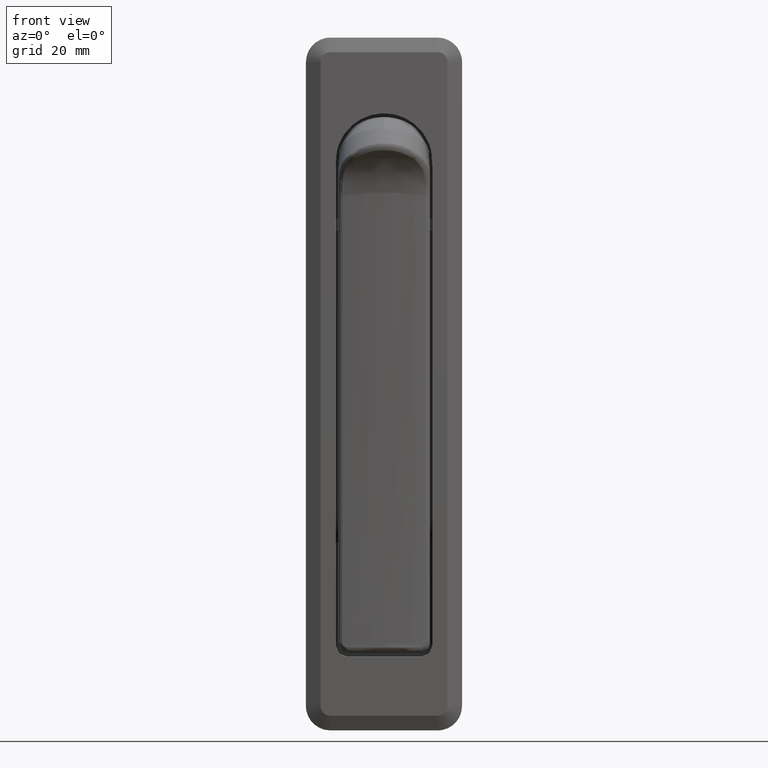
[diagram: clean part render]
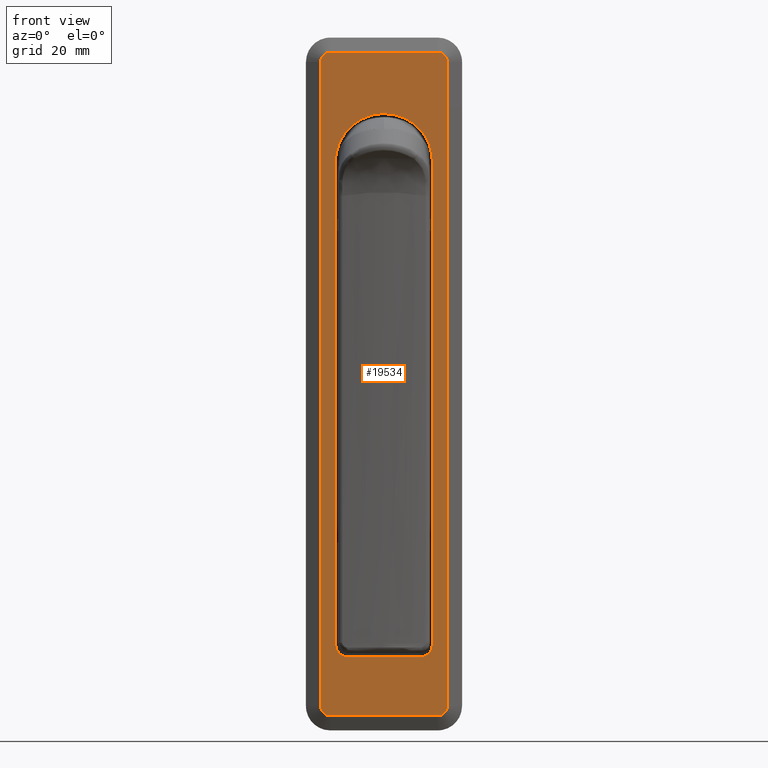
[diagram: same view with one face highlighted and labeled with its STEP entity id]
A machine part, front view. The second image highlights one B-rep face of the part: STEP entity #19534.
In plain terms, the highlighted face is a freeform B-spline surface patch.
Its self-contained STEP definition (entity closure, byte-faithful):
#11787=CARTESIAN_POINT('',(-2.999999999999955,6.532009098619094,7.505688318558847));
#11788=VERTEX_POINT('',#11787);
#11789=CARTESIAN_POINT('',(-2.999999999999915,9.900000000000000,-0.996242942257537));
#11790=VERTEX_POINT('',#11789);
#11791=CARTESIAN_POINT('',(-2.999999999999955,6.532009098619095,7.505688318558848));
#11792=CARTESIAN_POINT('',(-2.999999999999915,10.415456689642689,4.126022933873126));
#11793=CARTESIAN_POINT('',(-2.999999999999915,9.900000000000000,-0.996242942257537));
#11801=(BOUNDED_CURVE()B_SPLINE_CURVE(2,(#11791,#11792,#11793),.UNSPECIFIED.,.F.,.U.)B_SPLINE_CURVE_WITH_KNOTS((3,3),(0.715815399067005,1.0),.UNSPECIFIED.)CURVE()GEOMETRIC_REPRESENTATION_ITEM()RATIONAL_B_SPLINE_CURVE((0.961993882014952,0.871118690388353,1.0))REPRESENTATION_ITEM(''));
#11802=EDGE_CURVE('',#11788,#11790,#11801,.T.);
#11828=CARTESIAN_POINT('',(-2.999999999999915,-9.900000000000000,-0.996242942257537));
#11829=VERTEX_POINT('',#11828);
#11835=CARTESIAN_POINT('',(-2.999999999999914,-7.866966903158665,6.092071219580865));
#11836=VERTEX_POINT('',#11835);
#11837=CARTESIAN_POINT('',(-2.999999999999915,-9.900000000000000,-0.996242942257537));
#11838=CARTESIAN_POINT('',(-2.999999999999916,-10.297461367195085,2.953463869530825));
#11839=CARTESIAN_POINT('',(-2.999999999999915,-7.866966903158665,6.092071219580865));
#11847=(BOUNDED_CURVE()B_SPLINE_CURVE(2,(#11837,#11838,#11839),.UNSPECIFIED.,.F.,.U.)B_SPLINE_CURVE_WITH_KNOTS((3,3),(0.0,0.225792220966179),.UNSPECIFIED.)CURVE()GEOMETRIC_REPRESENTATION_ITEM()RATIONAL_B_SPLINE_CURVE((1.0,0.897600372987469,0.933926981230545))REPRESENTATION_ITEM(''));
#11848=EDGE_CURVE('',#11829,#11836,#11847,.T.);
#11917=CARTESIAN_POINT('',(-2.999999999999915,-7.866966903158665,6.092071219580865));
#11918=CARTESIAN_POINT('',(-2.999999999999916,-6.774625881449627,7.502660550383062));
#11919=CARTESIAN_POINT('',(-2.999999999999915,-5.260239756699732,8.445849732385462));
#11920=CARTESIAN_POINT('',(-2.999999999999914,2.602085E-015,11.722029533674592));
#11921=CARTESIAN_POINT('',(-2.999999999999915,5.260239756699734,8.445849732385460));
#11922=CARTESIAN_POINT('',(-2.999999999999915,5.933602583648081,8.026466245201750));
#11923=CARTESIAN_POINT('',(-2.999999999999955,6.532009098619095,7.505688318558848));
#11931=(BOUNDED_CURVE()B_SPLINE_CURVE(2,(#11917,#11918,#11919,#11920,#11921,#11922,#11923),.UNSPECIFIED.,.F.,.U.)B_SPLINE_CURVE_WITH_KNOTS((3,2,2,3),(0.225792220966179,0.333333333333333,0.666666666666667,0.715815399067005),.UNSPECIFIED.)CURVE()GEOMETRIC_REPRESENTATION_ITEM()RATIONAL_B_SPLINE_CURVE((0.933926981230545,0.951228745845240,1.0,0.848829118832710,1.0,0.977710428444356,0.961993882014952))REPRESENTATION_ITEM(''));
#11932=EDGE_CURVE('',#11836,#11788,#11931,.T.);
#14823=CARTESIAN_POINT('',(-2.999999999999915,7.400000000000000,-101.421151640079400));
#14824=VERTEX_POINT('',#14823);
#14825=CARTESIAN_POINT('',(-2.999999999999915,9.900000000000000,-98.919158912720107));
#14826=VERTEX_POINT('',#14825);
#14827=CARTESIAN_POINT('',(-2.999999999999915,7.400000000000000,-101.421151640079400));
#14828=CARTESIAN_POINT('',(-2.999999999999917,7.565134552396129,-101.421151640079400));
#14829=CARTESIAN_POINT('',(-2.999999999999917,7.727507471028567,-101.404938166329600));
#14830=CARTESIAN_POINT('',(-2.999999999999915,7.967094179171564,-101.357294523591090));
#14831=CARTESIAN_POINT('',(-2.999999999999916,8.046289380652135,-101.337497168259900));
#14832=CARTESIAN_POINT('',(-2.999999999999915,8.203315359883117,-101.289891964452710));
#14833=CARTESIAN_POINT('',(-2.999999999999916,8.281356629570025,-101.261950558978400));
#14834=CARTESIAN_POINT('',(-2.999999999999915,8.508363769184808,-101.167811201570800));
#14835=CARTESIAN_POINT('',(-2.999999999999915,8.651916844678889,-101.091003827384100));
#14836=CARTESIAN_POINT('',(-2.999999999999915,8.821716513535511,-100.977596530237310));
#14837=CARTESIAN_POINT('',(-2.999999999999915,8.855190025126317,-100.954037338331400));
#14838=CARTESIAN_POINT('',(-2.999999999999914,8.921148730586085,-100.905135568406610));
#14839=CARTESIAN_POINT('',(-2.999999999999915,8.953718274885555,-100.879722325719800));
#14840=CARTESIAN_POINT('',(-2.999999999999915,9.049243074541874,-100.801300551018900));
#14841=CARTESIAN_POINT('',(-2.999999999999915,9.109855343462710,-100.746284553411300));
#14842=CARTESIAN_POINT('',(-2.999999999999915,9.282767990830998,-100.573289159143400));
#14843=CARTESIAN_POINT('',(-2.999999999999915,9.386228539302907,-100.447437460519300));
#14844=CARTESIAN_POINT('',(-2.999999999999917,9.500438338240601,-100.276661399122800));
#14845=CARTESIAN_POINT('',(-2.999999999999915,9.522573789491386,-100.241728535084500));
#14846=CARTESIAN_POINT('',(-2.999999999999916,9.564899475081171,-100.171129008946100));
#14847=CARTESIAN_POINT('',(-2.999999999999915,9.585113353341690,-100.135438658561500));
#14848=CARTESIAN_POINT('',(-2.999999999999917,9.642960692157939,-100.027217494289600));
#14849=CARTESIAN_POINT('',(-2.999999999999915,9.712652232020870,-99.879861077705414));
#14850=CARTESIAN_POINT('',(-2.999999999999916,9.767693443972792,-99.726474686299952));
#14851=CARTESIAN_POINT('',(-2.999999999999916,9.803406424266182,-99.609143171366370));
#14852=CARTESIAN_POINT('',(-2.999999999999914,9.814381121959491,-99.569650037417588));
#14853=CARTESIAN_POINT('',(-2.999999999999917,9.834438169003860,-99.489884891878162));
#14854=CARTESIAN_POINT('',(-2.999999999999916,9.843530859907293,-99.449542715535856));
#14855=CARTESIAN_POINT('',(-2.999999999999916,9.883824057495179,-99.247618373579897));
#14856=CARTESIAN_POINT('',(-2.999999999999916,9.900000000000011,-99.084289752708472));
#14857=CARTESIAN_POINT('',(-2.999999999999915,9.900000000000000,-98.919158912720107));
#14858=B_SPLINE_CURVE_WITH_KNOTS('',3,(#14827,#14828,#14829,#14830,#14831,#14832,#14833,#14834,#14835,#14836,#14837,#14838,#14839,#14840,#14841,#14842,#14843,#14844,#14845,#14846,#14847,#14848,#14849,#14850,#14851,#14852,#14853,#14854,#14855,#14856,#14857),.UNSPECIFIED.,.F.,.U.,(4,2,2,2,2,2,2,2,2,2,2,1,2,2,2,4),(0.0,0.125000000000002,0.187500000000003,0.250000000000005,0.375000000000009,0.406250000000008,0.437500000000007,0.500000000000005,0.625000000000002,0.656250000000002,0.687500000000002,0.749999999999991,0.812499999999981,0.843749999999981,0.874999999999980,1.0),.UNSPECIFIED.);
#14859=EDGE_CURVE('',#14824,#14826,#14858,.T.);
#15395=CARTESIAN_POINT('',(-2.999999999999915,-9.900000000000000,-98.919158912720107));
#15396=VERTEX_POINT('',#15395);
#15397=CARTESIAN_POINT('',(-2.999999999999915,-7.400000000000000,-101.421151640079400));
#15398=VERTEX_POINT('',#15397);
#15399=CARTESIAN_POINT('',(-2.999999999999915,-9.900000000000000,-98.919158912720107));
#15400=CARTESIAN_POINT('',(-2.999999999999915,-9.900000000000008,-99.084292002045714));
#15401=CARTESIAN_POINT('',(-2.999999999999915,-9.883825564935862,-99.246671034342071));
#15402=CARTESIAN_POINT('',(-2.999999999999914,-9.836292038705915,-99.486277029107626));
#15403=CARTESIAN_POINT('',(-2.999999999999914,-9.816540102488398,-99.565480367663582));
#15404=CARTESIAN_POINT('',(-2.999999999999915,-9.769043333313835,-99.722526076471951));
#15405=CARTESIAN_POINT('',(-2.999999999999915,-9.741161468291233,-99.800591023160806));
#15406=CARTESIAN_POINT('',(-2.999999999999916,-9.647207147859984,-100.027695706793390));
#15407=CARTESIAN_POINT('',(-2.999999999999915,-9.570543103576037,-100.171324628593600));
#15408=CARTESIAN_POINT('',(-2.999999999999916,-9.457336231596029,-100.341230577724700));
#15409=CARTESIAN_POINT('',(-2.999999999999915,-9.433818205633653,-100.374725928698500));
#15410=CARTESIAN_POINT('',(-2.999999999999915,-9.385000903348391,-100.440729464633510));
#15411=CARTESIAN_POINT('',(-2.999999999999915,-9.359634471519463,-100.473318286891500));
#15412=CARTESIAN_POINT('',(-2.999999999999914,-9.281308486901784,-100.568957244067900));
#15413=CARTESIAN_POINT('',(-2.999999999999915,-9.226356950432935,-100.629643802944700));
#15414=CARTESIAN_POINT('',(-2.999999999999915,-9.053556769278247,-100.802774138816300));
#15415=CARTESIAN_POINT('',(-2.999999999999916,-8.927837645347033,-100.906372965019900));
#15416=CARTESIAN_POINT('',(-2.999999999999915,-8.757230531675139,-101.020746981148700));
#15417=CARTESIAN_POINT('',(-2.999999999999915,-8.722329553206254,-101.042916751507800));
#15418=CARTESIAN_POINT('',(-2.999999999999915,-8.651754988477777,-101.085330631300100));
#15419=CARTESIAN_POINT('',(-2.999999999999915,-8.616077214764408,-101.105586347667800));
#15420=CARTESIAN_POINT('',(-2.999999999999917,-8.507894201434942,-101.163552886044800));
#15421=CARTESIAN_POINT('',(-2.999999999999915,-8.360589783444285,-101.233386573954500));
#15422=CARTESIAN_POINT('',(-2.999999999999916,-8.207258850831163,-101.288539879018900));
#15423=CARTESIAN_POINT('',(-2.999999999999915,-8.089970638038773,-101.324326463911400));
#15424=CARTESIAN_POINT('',(-2.999999999999915,-8.050492222614446,-101.335323947474610));
#15425=CARTESIAN_POINT('',(-2.999999999999914,-7.970757152273805,-101.355423149900500));
#15426=CARTESIAN_POINT('',(-2.999999999999916,-7.930421231009581,-101.364537553475400));
#15427=CARTESIAN_POINT('',(-2.999999999999915,-7.728476772915388,-101.404935754996900));
#15428=CARTESIAN_POINT('',(-2.999999999999914,-7.565136841410714,-101.421151640079300));
#15429=CARTESIAN_POINT('',(-2.999999999999915,-7.400000000000001,-101.421151640079400));
#15430=B_SPLINE_CURVE_WITH_KNOTS('',3,(#15399,#15400,#15401,#15402,#15403,#15404,#15405,#15406,#15407,#15408,#15409,#15410,#15411,#15412,#15413,#15414,#15415,#15416,#15417,#15418,#15419,#15420,#15421,#15422,#15423,#15424,#15425,#15426,#15427,#15428,#15429),.UNSPECIFIED.,.F.,.U.,(4,2,2,2,2,2,2,2,2,2,2,1,2,2,2,4),(0.0,0.125000000000009,0.187500000000019,0.250000000000028,0.375000000000038,0.406250000000034,0.437500000000030,0.500000000000023,0.625000000000007,0.656250000000003,0.687499999999999,0.749999999999996,0.812499999999993,0.843749999999994,0.874999999999994,1.0),.UNSPECIFIED.);
#15431=EDGE_CURVE('',#15396,#15398,#15430,.T.);
#15468=CARTESIAN_POINT('',(-2.999999999999915,-9.900000000000000,-0.996242942257537));
#15469=CARTESIAN_POINT('',(-2.999999999999915,-9.900000000000000,-98.919158912720107));
#15470=QUASI_UNIFORM_CURVE('',1,(#15468,#15469),.UNSPECIFIED.,.F.,.U.);
#15471=EDGE_CURVE('',#11829,#15396,#15470,.T.);
#15527=CARTESIAN_POINT('',(-2.999999999999915,9.900000000000000,-0.996242942257537));
#15528=CARTESIAN_POINT('',(-2.999999999999915,9.900000000000000,-98.919158912720107));
#15529=QUASI_UNIFORM_CURVE('',1,(#15527,#15528),.UNSPECIFIED.,.F.,.U.);
#15530=EDGE_CURVE('',#11790,#14826,#15529,.T.);
#15775=CARTESIAN_POINT('',(-2.999999999999915,7.400000000000000,-101.421151640079400));
#15776=CARTESIAN_POINT('',(-2.999999999999915,-7.400000000000000,-101.421151640079400));
#15777=QUASI_UNIFORM_CURVE('',1,(#15775,#15776),.UNSPECIFIED.,.F.,.U.);
#15778=EDGE_CURVE('',#14824,#15398,#15777,.T.);
#18859=CARTESIAN_POINT('',(-2.999999999999915,-11.0,22.500000000000000));
#18860=VERTEX_POINT('',#18859);
#18866=CARTESIAN_POINT('',(-2.999999999999915,-13.0,20.500000000000000));
#18867=VERTEX_POINT('',#18866);
#18868=CARTESIAN_POINT('',(-2.999999999999915,-12.999999999999950,20.500000000000000));
#18869=CARTESIAN_POINT('',(-2.999999999999915,-12.999999999999956,22.499999999999957));
#18870=CARTESIAN_POINT('',(-2.999999999999915,-11.0,22.499999999999961));
#18878=(BOUNDED_CURVE()B_SPLINE_CURVE(2,(#18868,#18869,#18870),.UNSPECIFIED.,.F.,.U.)CURVE()GEOMETRIC_REPRESENTATION_ITEM()QUASI_UNIFORM_CURVE()RATIONAL_B_SPLINE_CURVE((1.0,0.707106781186548,1.0))REPRESENTATION_ITEM(''));
#18879=EDGE_CURVE('',#18867,#18860,#18878,.T.);
#18909=CARTESIAN_POINT('',(-2.999999999999915,-13.0,-111.500000000000000));
#18910=VERTEX_POINT('',#18909);
#18924=CARTESIAN_POINT('',(-2.999999999999915,-13.0,-111.500000000000000));
#18925=CARTESIAN_POINT('',(-2.999999999999915,-13.0,20.500000000000000));
#18926=QUASI_UNIFORM_CURVE('',1,(#18924,#18925),.UNSPECIFIED.,.F.,.U.);
#18927=EDGE_CURVE('',#18910,#18867,#18926,.T.);
#18939=CARTESIAN_POINT('',(-2.999999999999915,11.0,22.500000000000000));
#18940=VERTEX_POINT('',#18939);
#18946=CARTESIAN_POINT('',(-2.999999999999915,-11.0,22.500000000000000));
#18947=CARTESIAN_POINT('',(-2.999999999999915,11.0,22.500000000000000));
#18948=QUASI_UNIFORM_CURVE('',1,(#18946,#18947),.UNSPECIFIED.,.F.,.U.);
#18949=EDGE_CURVE('',#18860,#18940,#18948,.T.);
#18974=CARTESIAN_POINT('',(-2.999999999999915,-11.0,-113.500000000000000));
#18975=VERTEX_POINT('',#18974);
#18997=CARTESIAN_POINT('',(-2.999999999999915,-11.0,-113.500000000000000));
#18998=CARTESIAN_POINT('',(-2.999999999999915,-12.999999999999956,-113.499999999999960));
#18999=CARTESIAN_POINT('',(-2.999999999999915,-12.999999999999950,-111.500000000000000));
#19007=(BOUNDED_CURVE()B_SPLINE_CURVE(2,(#18997,#18998,#18999),.UNSPECIFIED.,.F.,.U.)CURVE()GEOMETRIC_REPRESENTATION_ITEM()QUASI_UNIFORM_CURVE()RATIONAL_B_SPLINE_CURVE((1.0,0.707106781186548,1.0))REPRESENTATION_ITEM(''));
#19008=EDGE_CURVE('',#18975,#18910,#19007,.T.);
#19029=CARTESIAN_POINT('',(-2.999999999999915,13.0,20.500000000000000));
#19030=VERTEX_POINT('',#19029);
#19036=CARTESIAN_POINT('',(-2.999999999999915,11.0,22.499999999999950));
#19037=CARTESIAN_POINT('',(-2.999999999999915,12.999999999999950,22.499999999999947));
#19038=CARTESIAN_POINT('',(-2.999999999999915,13.0,20.500000000000000));
#19046=(BOUNDED_CURVE()B_SPLINE_CURVE(2,(#19036,#19037,#19038),.UNSPECIFIED.,.F.,.U.)CURVE()GEOMETRIC_REPRESENTATION_ITEM()QUASI_UNIFORM_CURVE()RATIONAL_B_SPLINE_CURVE((1.0,0.707106781186547,1.0))REPRESENTATION_ITEM(''));
#19047=EDGE_CURVE('',#18940,#19030,#19046,.T.);
#19071=CARTESIAN_POINT('',(-2.999999999999915,11.0,-113.500000000000000));
#19072=VERTEX_POINT('',#19071);
#19086=CARTESIAN_POINT('',(-2.999999999999915,11.0,-113.500000000000000));
#19087=CARTESIAN_POINT('',(-2.999999999999915,-11.0,-113.500000000000000));
#19088=QUASI_UNIFORM_CURVE('',1,(#19086,#19087),.UNSPECIFIED.,.F.,.U.);
#19089=EDGE_CURVE('',#19072,#18975,#19088,.T.);
#19101=CARTESIAN_POINT('',(-2.999999999999915,13.0,-111.500000000000000));
#19102=VERTEX_POINT('',#19101);
#19108=CARTESIAN_POINT('',(-2.999999999999915,13.0,20.500000000000000));
#19109=CARTESIAN_POINT('',(-2.999999999999915,13.0,-111.500000000000000));
#19110=QUASI_UNIFORM_CURVE('',1,(#19108,#19109),.UNSPECIFIED.,.F.,.U.);
#19111=EDGE_CURVE('',#19030,#19102,#19110,.T.);
#19137=CARTESIAN_POINT('',(-2.999999999999915,12.999999999999959,-111.500000000000000));
#19138=CARTESIAN_POINT('',(-2.999999999999915,12.999999999999961,-113.499999999999960));
#19139=CARTESIAN_POINT('',(-2.999999999999915,11.0,-113.500000000000000));
#19147=(BOUNDED_CURVE()B_SPLINE_CURVE(2,(#19137,#19138,#19139),.UNSPECIFIED.,.F.,.U.)CURVE()GEOMETRIC_REPRESENTATION_ITEM()QUASI_UNIFORM_CURVE()RATIONAL_B_SPLINE_CURVE((1.0,0.707106781186548,1.0))REPRESENTATION_ITEM(''));
#19148=EDGE_CURVE('',#19102,#19072,#19147,.T.);
#19509=CARTESIAN_POINT('',(-2.999999999999915,-14.298699949606959,29.293199736405619));
#19510=CARTESIAN_POINT('',(-2.999999999999915,14.298700646981301,29.293199736405619));
#19511=CARTESIAN_POINT('',(-2.999999999999915,-14.298699949606959,-120.293203384209900));
#19512=CARTESIAN_POINT('',(-2.999999999999915,14.298700646981301,-120.293203384209900));
#19513=B_SPLINE_SURFACE_WITH_KNOTS('',1,1,((#19509,#19511),(#19510,#19512)),.UNSPECIFIED.,.F.,.F.,.U.,(2,2),(2,2),(0.0,28.597400596588258),(0.0,149.586403120615500),.UNSPECIFIED.);
#19514=ORIENTED_EDGE('',*,*,#18927,.T.);
#19515=ORIENTED_EDGE('',*,*,#18879,.T.);
#19516=ORIENTED_EDGE('',*,*,#18949,.T.);
#19517=ORIENTED_EDGE('',*,*,#19047,.T.);
#19518=ORIENTED_EDGE('',*,*,#19111,.T.);
#19519=ORIENTED_EDGE('',*,*,#19148,.T.);
#19520=ORIENTED_EDGE('',*,*,#19089,.T.);
#19521=ORIENTED_EDGE('',*,*,#19008,.T.);
#19522=EDGE_LOOP('',(#19514,#19515,#19516,#19517,#19518,#19519,#19520,#19521));
#19523=FACE_OUTER_BOUND('',#19522,.T.);
#19524=ORIENTED_EDGE('',*,*,#15530,.F.);
#19525=ORIENTED_EDGE('',*,*,#11802,.F.);
#19526=ORIENTED_EDGE('',*,*,#11932,.F.);
#19527=ORIENTED_EDGE('',*,*,#11848,.F.);
#19528=ORIENTED_EDGE('',*,*,#15471,.T.);
#19529=ORIENTED_EDGE('',*,*,#15431,.T.);
#19530=ORIENTED_EDGE('',*,*,#15778,.F.);
#19531=ORIENTED_EDGE('',*,*,#14859,.T.);
#19532=EDGE_LOOP('',(#19524,#19525,#19526,#19527,#19528,#19529,#19530,#19531));
#19533=FACE_BOUND('',#19532,.T.);
#19534=ADVANCED_FACE('',(#19523,#19533),#19513,.T.);